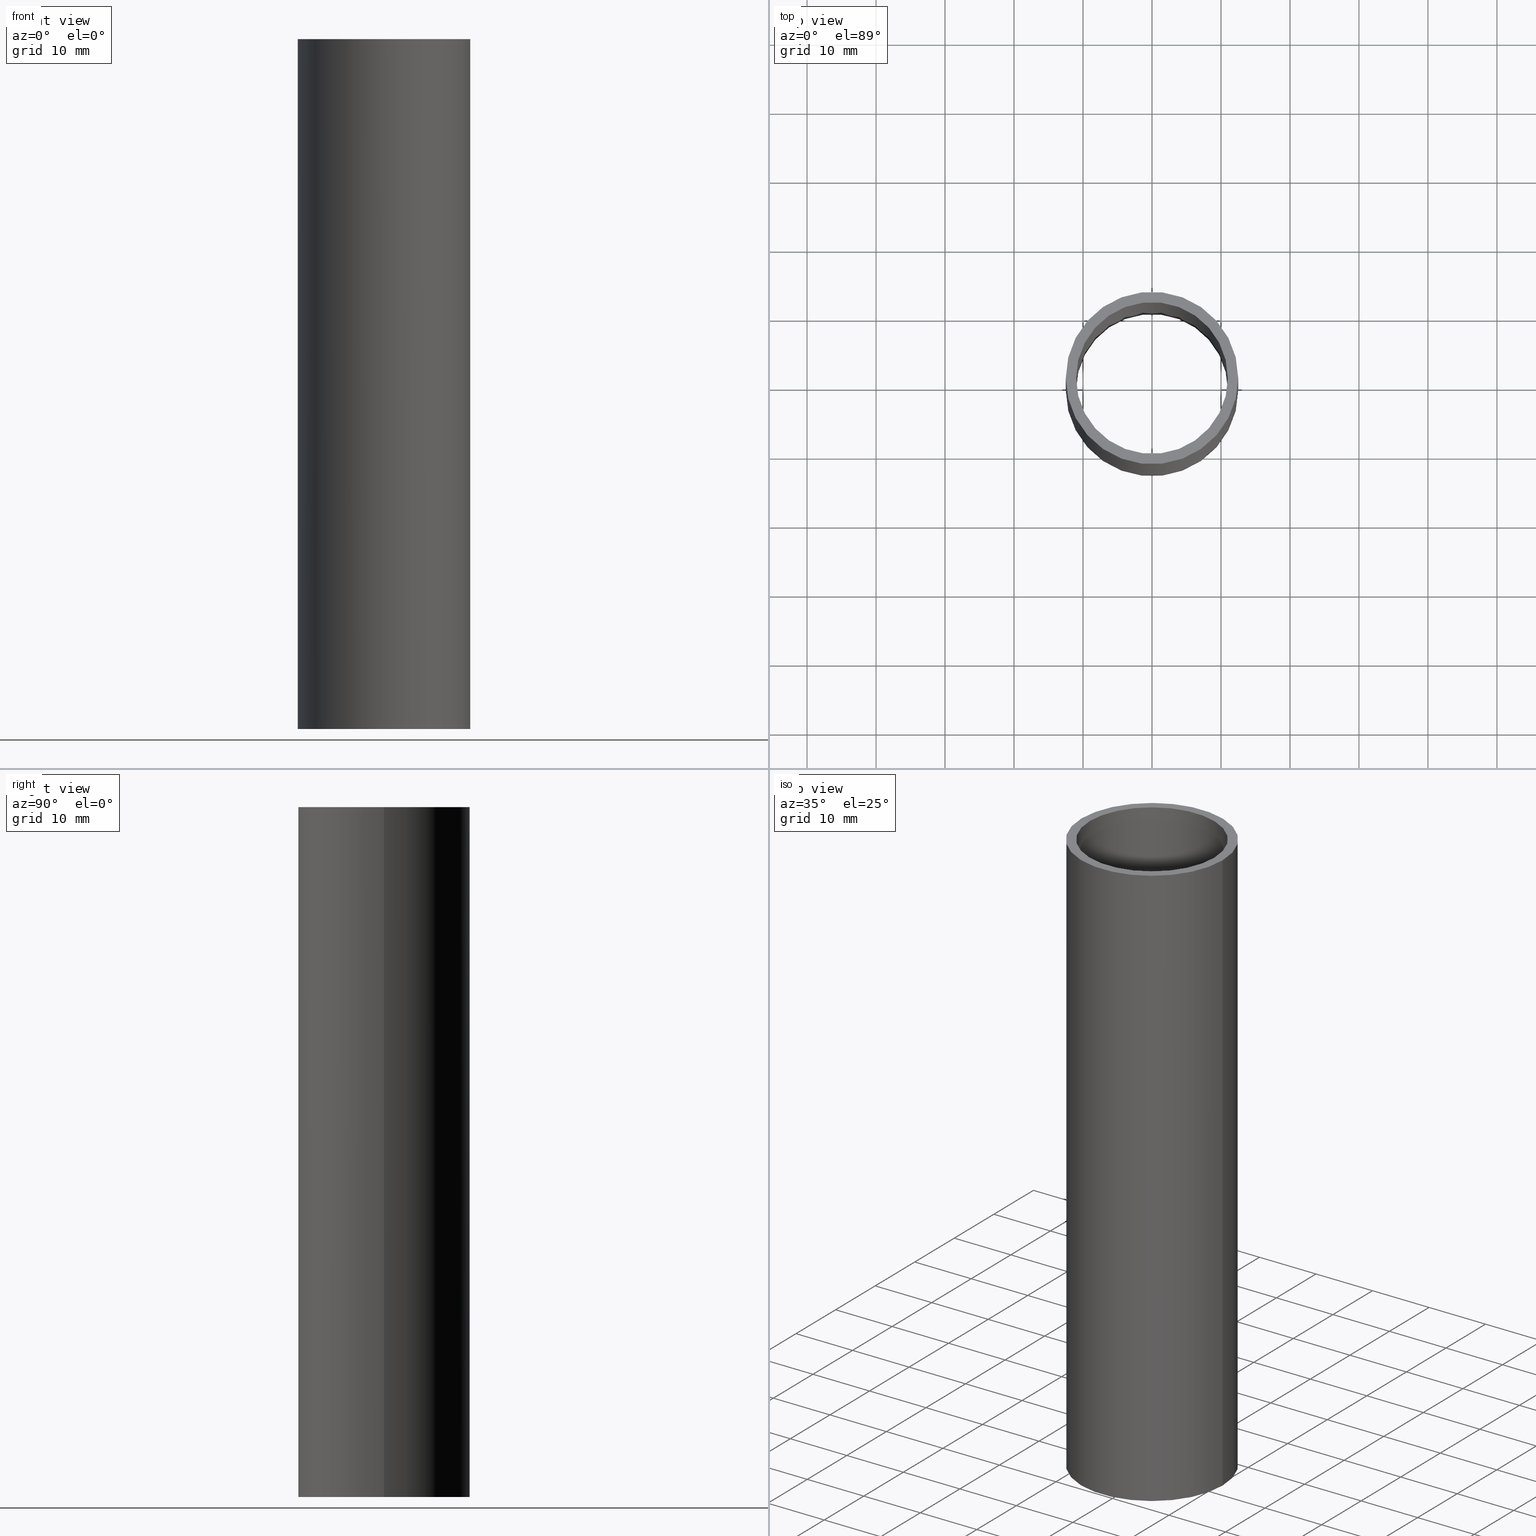
[diagram: canonical four-view strip — front | top / right | iso, engineering-drawing reading convention]
A machine part, canonical four-view strip (front | top / right | iso — engineering-drawing reading convention). The complete STEP part file that produces these views, byte-faithful:
ISO-10303-21;
HEADER;
/* Generated by software containing ST-Developer
 * from STEP Tools, Inc. (www.steptools.com) 
 */

FILE_DESCRIPTION(
/* description */ (''),
/* implementation_level */ '2;1');

FILE_NAME(
/* name */ 
'Q:\\Catalogo\\2_Accessori Dierre\\Per Download Web\\CATALOGO ACCESSOR
I PER RIPARI\\PAGINA 64\\BTUTE0000004.stp',
/* time_stamp */ '2018-01-31T14:14:44+01:00',
/* author */ ('fzagni'),
/* organization */ (''),
/* preprocessor_version */ 'ST-DEVELOPER v16.1',
/* originating_system */ 'Autodesk Inventor 2016',
/* authorisation */ '');

FILE_SCHEMA (('AUTOMOTIVE_DESIGN { 1 0 10303 214 3 1 1 }'));
ENDSEC;

DATA;
#10=MECHANICAL_DESIGN_GEOMETRIC_PRESENTATION_REPRESENTATION('',(#13),#103);
#11=SHAPE_REPRESENTATION_RELATIONSHIP('SRR','None',#112,#12);
#12=ADVANCED_BREP_SHAPE_REPRESENTATION('',(#14),#102);
#13=STYLED_ITEM('',(#121),#14);
#14=MANIFOLD_SOLID_BREP('Solido1',#59);
#15=PLANE('',#67);
#16=PLANE('',#68);
#17=FACE_BOUND('',#26,.T.);
#18=FACE_BOUND('',#28,.T.);
#19=FACE_BOUND('',#30,.T.);
#20=FACE_BOUND('',#32,.T.);
#21=FACE_OUTER_BOUND('',#25,.T.);
#22=FACE_OUTER_BOUND('',#27,.T.);
#23=FACE_OUTER_BOUND('',#29,.T.);
#24=FACE_OUTER_BOUND('',#31,.T.);
#25=EDGE_LOOP('',(#45));
#26=EDGE_LOOP('',(#46));
#27=EDGE_LOOP('',(#47));
#28=EDGE_LOOP('',(#48));
#29=EDGE_LOOP('',(#49));
#30=EDGE_LOOP('',(#50));
#31=EDGE_LOOP('',(#51));
#32=EDGE_LOOP('',(#52));
#33=CIRCLE('',#62,11.);
#34=CIRCLE('',#63,11.);
#35=CIRCLE('',#65,12.5);
#36=CIRCLE('',#66,12.5);
#37=VERTEX_POINT('',#89);
#38=VERTEX_POINT('',#91);
#39=VERTEX_POINT('',#94);
#40=VERTEX_POINT('',#96);
#41=EDGE_CURVE('',#37,#37,#33,.T.);
#42=EDGE_CURVE('',#38,#38,#34,.T.);
#43=EDGE_CURVE('',#39,#39,#35,.T.);
#44=EDGE_CURVE('',#40,#40,#36,.T.);
#45=ORIENTED_EDGE('',*,*,#41,.F.);
#46=ORIENTED_EDGE('',*,*,#42,.F.);
#47=ORIENTED_EDGE('',*,*,#43,.F.);
#48=ORIENTED_EDGE('',*,*,#44,.F.);
#49=ORIENTED_EDGE('',*,*,#44,.T.);
#50=ORIENTED_EDGE('',*,*,#42,.T.);
#51=ORIENTED_EDGE('',*,*,#43,.T.);
#52=ORIENTED_EDGE('',*,*,#41,.T.);
#53=CYLINDRICAL_SURFACE('',#61,11.);
#54=CYLINDRICAL_SURFACE('',#64,12.5);
#55=ADVANCED_FACE('',(#21,#17),#53,.F.);
#56=ADVANCED_FACE('',(#22,#18),#54,.T.);
#57=ADVANCED_FACE('',(#23,#19),#15,.F.);
#58=ADVANCED_FACE('',(#24,#20),#16,.T.);
#59=CLOSED_SHELL('',(#55,#56,#57,#58));
#60=AXIS2_PLACEMENT_3D('placement',#87,#69,#70);
#61=AXIS2_PLACEMENT_3D('',#88,#71,#72);
#62=AXIS2_PLACEMENT_3D('',#90,#73,#74);
#63=AXIS2_PLACEMENT_3D('',#92,#75,#76);
#64=AXIS2_PLACEMENT_3D('',#93,#77,#78);
#65=AXIS2_PLACEMENT_3D('',#95,#79,#80);
#66=AXIS2_PLACEMENT_3D('',#97,#81,#82);
#67=AXIS2_PLACEMENT_3D('',#98,#83,#84);
#68=AXIS2_PLACEMENT_3D('',#99,#85,#86);
#69=DIRECTION('axis',(0.,0.,1.));
#70=DIRECTION('refdir',(1.,0.,0.));
#71=DIRECTION('center_axis',(0.,0.,1.));
#72=DIRECTION('ref_axis',(-1.,0.,0.));
#73=DIRECTION('center_axis',(0.,0.,-1.));
#74=DIRECTION('ref_axis',(-1.,0.,0.));
#75=DIRECTION('center_axis',(0.,0.,1.));
#76=DIRECTION('ref_axis',(-1.,0.,0.));
#77=DIRECTION('center_axis',(0.,0.,1.));
#78=DIRECTION('ref_axis',(-1.,0.,0.));
#79=DIRECTION('center_axis',(0.,0.,1.));
#80=DIRECTION('ref_axis',(-1.,0.,0.));
#81=DIRECTION('center_axis',(0.,0.,-1.));
#82=DIRECTION('ref_axis',(-1.,0.,0.));
#83=DIRECTION('center_axis',(0.,0.,1.));
#84=DIRECTION('ref_axis',(1.,0.,0.));
#85=DIRECTION('center_axis',(0.,0.,1.));
#86=DIRECTION('ref_axis',(1.,0.,0.));
#87=CARTESIAN_POINT('',(0.,0.,0.));
#88=CARTESIAN_POINT('Origin',(0.,0.,0.));
#89=CARTESIAN_POINT('',(11.,1.34711147906209E-15,100.));
#90=CARTESIAN_POINT('Origin',(0.,0.,100.));
#91=CARTESIAN_POINT('',(11.,1.34711147906209E-15,0.));
#92=CARTESIAN_POINT('Origin',(0.,0.,0.));
#93=CARTESIAN_POINT('Origin',(0.,0.,0.));
#94=CARTESIAN_POINT('',(12.5,1.53080849893419E-15,100.));
#95=CARTESIAN_POINT('Origin',(0.,0.,100.));
#96=CARTESIAN_POINT('',(12.5,1.53080849893419E-15,0.));
#97=CARTESIAN_POINT('Origin',(0.,0.,0.));
#98=CARTESIAN_POINT('Origin',(-7.19686321377933E-16,-2.96059473233375E-16,
0.));
#99=CARTESIAN_POINT('Origin',(-7.19686321377933E-16,-2.96059473233375E-16,
100.));
#100=UNCERTAINTY_MEASURE_WITH_UNIT(LENGTH_MEASURE(0.01),#104,
'DISTANCE_ACCURACY_VALUE',
'Maximum model space distance between geometric entities at asserted c
onnectivities');
#101=UNCERTAINTY_MEASURE_WITH_UNIT(LENGTH_MEASURE(1.E-6),#104,
'DISTANCE_ACCURACY_VALUE',
'Maximum model space distance between geometric entities at asserted c
onnectivities');
#102=(
GEOMETRIC_REPRESENTATION_CONTEXT(3)
GLOBAL_UNCERTAINTY_ASSIGNED_CONTEXT((#100))
GLOBAL_UNIT_ASSIGNED_CONTEXT((#104,#107,#105))
REPRESENTATION_CONTEXT('','3D')
);
#103=(
GEOMETRIC_REPRESENTATION_CONTEXT(3)
GLOBAL_UNCERTAINTY_ASSIGNED_CONTEXT((#101))
GLOBAL_UNIT_ASSIGNED_CONTEXT((#104,#107,#105))
REPRESENTATION_CONTEXT('','3D')
);
#104=(
LENGTH_UNIT()
NAMED_UNIT(*)
SI_UNIT(.MILLI.,.METRE.)
);
#105=(
NAMED_UNIT(*)
SI_UNIT($,.STERADIAN.)
SOLID_ANGLE_UNIT()
);
#106=DIMENSIONAL_EXPONENTS(0.,0.,0.,0.,0.,0.,0.);
#107=(
CONVERSION_BASED_UNIT('degree',#109)
NAMED_UNIT(#106)
PLANE_ANGLE_UNIT()
);
#108=(
NAMED_UNIT(*)
PLANE_ANGLE_UNIT()
SI_UNIT($,.RADIAN.)
);
#109=PLANE_ANGLE_MEASURE_WITH_UNIT(PLANE_ANGLE_MEASURE(0.01745329252),#108);
#110=SHAPE_DEFINITION_REPRESENTATION(#111,#112);
#111=PRODUCT_DEFINITION_SHAPE('',$,#114);
#112=SHAPE_REPRESENTATION('',(#60),#102);
#113=PRODUCT_DEFINITION_CONTEXT('part definition',#118,'design');
#114=PRODUCT_DEFINITION('Parte1','Parte1',#115,#113);
#115=PRODUCT_DEFINITION_FORMATION('',$,#120);
#116=PRODUCT_RELATED_PRODUCT_CATEGORY('Parte1','Parte1',(#120));
#117=APPLICATION_PROTOCOL_DEFINITION('international standard',
'automotive_design',2009,#118);
#118=APPLICATION_CONTEXT(
'Core Data for Automotive Mechanical Design Process');
#119=PRODUCT_CONTEXT('part definition',#118,'mechanical');
#120=PRODUCT('Parte1','Parte1',$,(#119));
#121=PRESENTATION_STYLE_ASSIGNMENT((#122));
#122=SURFACE_STYLE_USAGE(.BOTH.,#123);
#123=SURFACE_SIDE_STYLE('',(#124));
#124=SURFACE_STYLE_FILL_AREA(#125);
#125=FILL_AREA_STYLE('',(#126));
#126=FILL_AREA_STYLE_COLOUR('',#127);
#127=COLOUR_RGB('',0.956862745098039,0.956862745098039,0.956862745098039);
ENDSEC;
END-ISO-10303-21;
